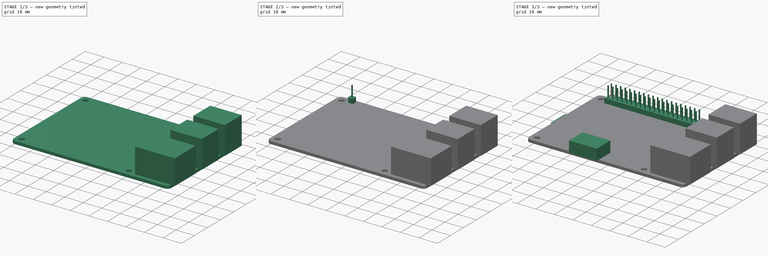
[diagram: build sequence overview — one tinted view per stage of 3, left to right]
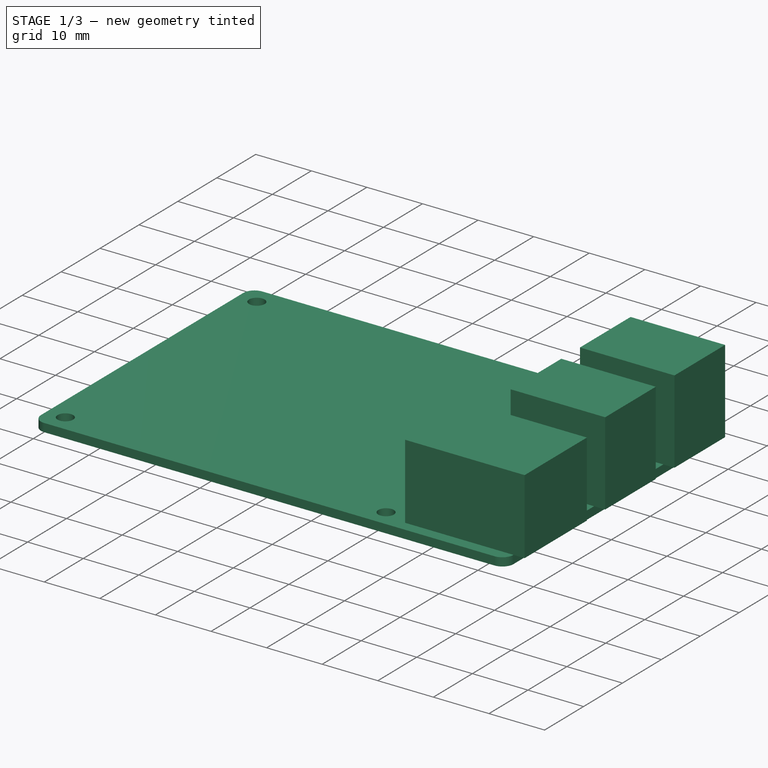
[diagram: stage 1 of 3 — iso view after this stage's code; geometry added in this stage tinted green]
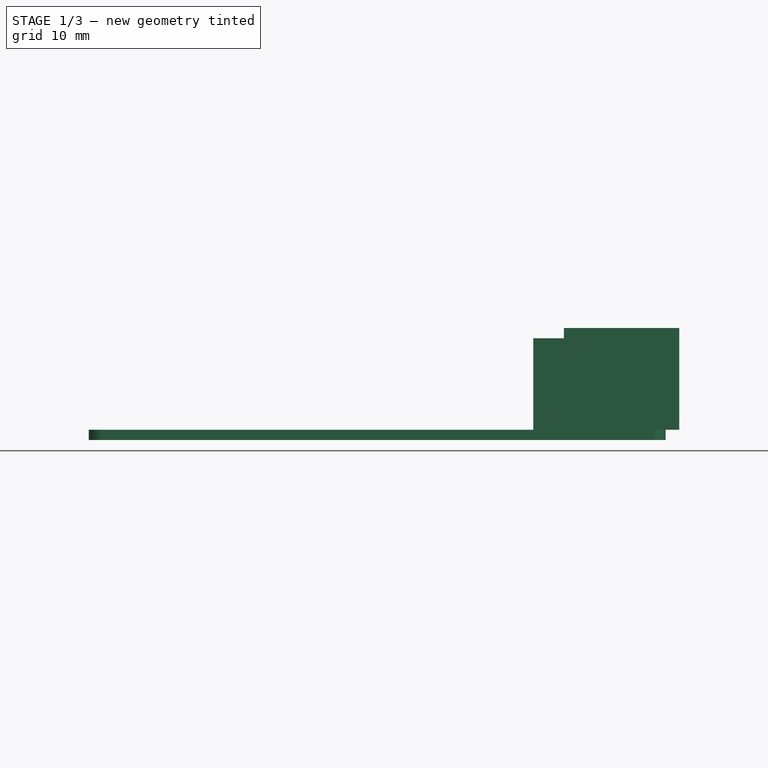
[diagram: stage 1 of 3 — front view after this stage's code; geometry added in this stage tinted green]
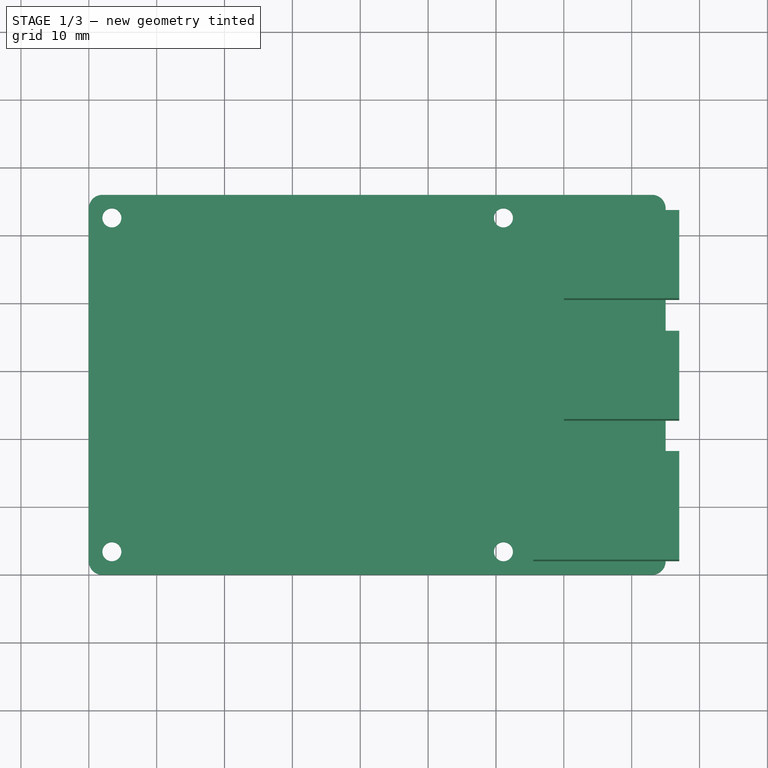
[diagram: stage 1 of 3 — top view after this stage's code; geometry added in this stage tinted green]
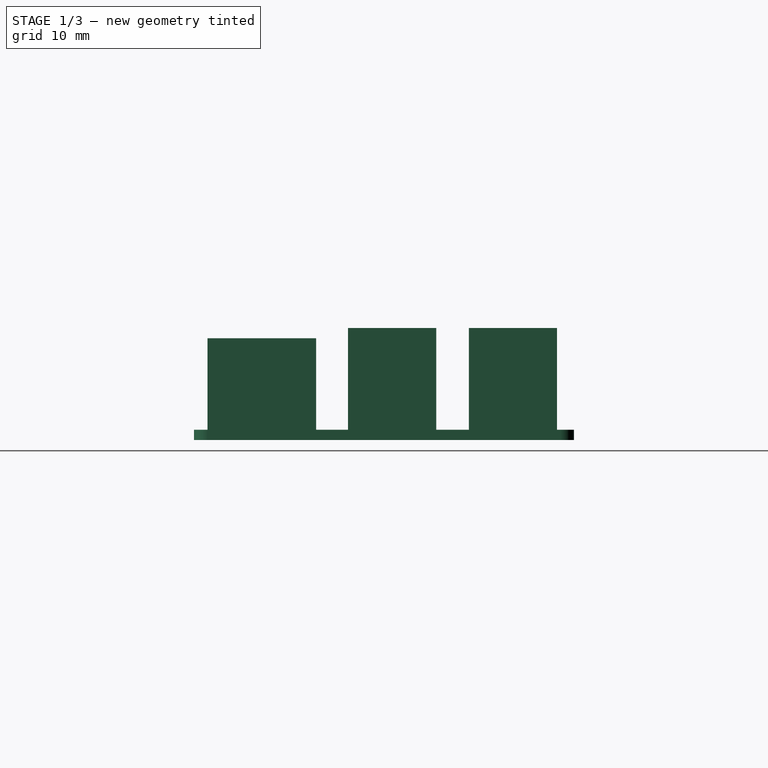
[diagram: stage 1 of 3 — right view after this stage's code; geometry added in this stage tinted green]
FCSTD DOCUMENT  (FreeCAD 1.0R39285 (Git))
Label: RaspberryPI-3B
License: All rights reserved
LicenseURL: https://en.wikipedia.org/wiki/All_rights_reserved
objects: Sketcher::SketchObject×7, PartDesign::Pad×7, PartDesign::LinearPattern×2, PartDesign::MultiTransform×1, PartDesign::Body×1
note: 42 computed .brp shape members not serialized (recipe doc carries the construction recipe); baked Part::Feature solids carry a one-line shape summary decoded from their .brp

FEATURE [Sketcher::SketchObject] Sketch
  ArcFitTolerance = 1e-06
  AttachmentSupport = -> [XY_Plane]
  FullyConstrained = true
  MakeInternals = false
  MapMode = 5
  sketch-geometry (20):
    g0: LineSegment StartX=0 StartY=54 StartZ=0 EndX=0 EndY=2 EndZ=0
    g1: LineSegment StartX=2 StartY=0 StartZ=0 EndX=83 EndY=0 EndZ=0
    g2: LineSegment StartX=85 StartY=2 StartZ=0 EndX=85 EndY=54 EndZ=0
    g3: LineSegment StartX=83 StartY=56 StartZ=0 EndX=2 EndY=56 EndZ=0
    g4: ArcOfCircle CenterX=2 CenterY=2 CenterZ=0 NormalX=0 NormalY=0 NormalZ=1 AngleXU=0 Radius=2 StartAngle=3.14159 EndAngle=4.71239
    g5: GeomPoint [constr] X=0 Y=0 Z=0
    g6: ArcOfCircle CenterX=2 CenterY=54 CenterZ=0 NormalX=0 NormalY=0 NormalZ=1 AngleXU=0 Radius=2 StartAngle=1.5708 EndAngle=3.14159
    g7: GeomPoint [constr] X=0 Y=56 Z=0
    g8: ArcOfCircle CenterX=83 CenterY=54 CenterZ=0 NormalX=0 NormalY=0 NormalZ=1 AngleXU=0 Radius=2 StartAngle=0 EndAngle=1.5708
    g9: GeomPoint [constr] X=85 Y=56 Z=0
    g10: ArcOfCircle CenterX=83 CenterY=2 CenterZ=0 NormalX=0 NormalY=0 NormalZ=1 AngleXU=0 Radius=2 StartAngle=4.71239 EndAngle=6.28319
    g11: GeomPoint [constr] X=85 Y=0 Z=0
    g12: Circle CenterX=3.4 CenterY=3.4 CenterZ=0 NormalX=0 NormalY=0 NormalZ=1 AngleXU=0 Radius=1.4
    g13: Circle CenterX=3.4 CenterY=52.6 CenterZ=0 NormalX=0 NormalY=0 NormalZ=1 AngleXU=0 Radius=1.4
    g14: Circle CenterX=61.1 CenterY=52.6 CenterZ=0 NormalX=0 NormalY=0 NormalZ=1 AngleXU=0 Radius=1.4
    g15: Circle CenterX=61.1 CenterY=3.4 CenterZ=0 NormalX=0 NormalY=0 NormalZ=1 AngleXU=0 Radius=1.4
    g16: LineSegment [constr] StartX=61.1 StartY=54 StartZ=0 EndX=61.1 EndY=56 EndZ=0
    g17: LineSegment [constr] StartX=2 StartY=3.4 StartZ=0 EndX=0 EndY=3.4 EndZ=0
    g18: LineSegment [constr] StartX=3.4 StartY=2 StartZ=0 EndX=3.4 EndY=0 EndZ=0
    g19: LineSegment [constr] StartX=62.5 StartY=52.6 StartZ=0 EndX=85 EndY=52.6 EndZ=0
  constraints (55):
    c: Vertical(g0)
    c: Vertical(g2)
    c: Horizontal(g1)
    c: Horizontal(g3)
    c: Distance(g7,g9) = 85
    c: Distance(g5,g7) = 56
    c: PointOnObject(g5,g0)
    c: PointOnObject(g5,g1)
    c: Tangent(g0,g4) = -1.5708
    c: Tangent(g1,g4) = -1.5708
    c: PointOnObject(g7,g0)
    c: PointOnObject(g7,g3)
    c: Tangent(g0,g6) = -1.5708
    c: Tangent(g3,g6) = -1.5708
    c: PointOnObject(g9,g2)
    c: PointOnObject(g9,g3)
    c: Tangent(g2,g8) = -1.5708
    c: Tangent(g3,g8) = -1.5708
    c: PointOnObject(g11,g1)
    c: PointOnObject(g11,g2)
    c: Tangent(g1,g10) = -1.5708
    c: Tangent(g2,g10) = -1.5708
    c: Equal(g4,g6)
    c: Equal(g6,g8)
    c: Equal(g8,g10)
    c: Coincident(g5,g-1)
    c: Diameter(g4) = 4
    c: Diameter(g12) = 2.8
    c: Equal(g13,g12)
    c: Equal(g12,g15)
    c: Equal(g15,g14)
    c: Horizontal(g13,g14)
    c: Horizontal(g15,g12)
    c: Vertical(g12,g13)
    c: Vertical(g14,g15)
    c: PointOnObject(g16,g14)
    c: PointOnObject(g16,g3)
    c: Vertical(g16)
    c: Vertical(g16,g14)
    c: PointOnObject(g17,g12)
    c: PointOnObject(g17,g0)
    c: Horizontal(g17)
    c: PointOnObject(g18,g12)
    c: PointOnObject(g18,g1)
    c: Vertical(g18)
    c: Vertical(g18,g12)
    c: Horizontal(g12,g17)
    c: Equal(g16,g18)
    c: Equal(g18,g17)
    c: DistanceY(g18,g18) = 2
    c: PointOnObject(g19,g14)
    c: PointOnObject(g19,g2)
    c: Horizontal(g19)
    c: DistanceX(g19,g19) = 22.5
    c: Horizontal(g19,g14)
FEATURE [PartDesign::Pad] Pad
  Direction = (0,0,1)
  Length = 1.5
  Length2 = 10
  Profile = -> Sketch
  ReferenceAxis = -> Sketch [N_Axis]
  Refine = true
  Reversed = true
  Suppressed = false
  Type = 0
FEATURE [Sketcher::SketchObject] Sketch001
  ArcFitTolerance = 1e-06
  AttachmentSupport = -> [Pad]
  ExternalGeometry = -> [Pad]
  FullyConstrained = true
  MakeInternals = false
  MapMode = 5
  sketch-geometry (8):
    g0: LineSegment StartX=70 StartY=53.5 StartZ=0 EndX=70 EndY=40.5 EndZ=0
    g1: LineSegment StartX=70 StartY=40.5 StartZ=0 EndX=87 EndY=40.5 EndZ=0
    g2: LineSegment StartX=87 StartY=40.5 StartZ=0 EndX=87 EndY=53.5 EndZ=0
    g3: LineSegment StartX=87 StartY=53.5 StartZ=0 EndX=70 EndY=53.5 EndZ=0
    g4: LineSegment StartX=70 StartY=35.7 StartZ=0 EndX=70 EndY=22.7 EndZ=0
    g5: LineSegment StartX=70 StartY=22.7 StartZ=0 EndX=87 EndY=22.7 EndZ=0
    g6: LineSegment StartX=87 StartY=22.7 StartZ=0 EndX=87 EndY=35.7 EndZ=0
    g7: LineSegment StartX=87 StartY=35.7 StartZ=0 EndX=70 EndY=35.7 EndZ=0
  constraints (24):
    c: Coincident(g0,g1)
    c: Coincident(g1,g2)
    c: Coincident(g2,g3)
    c: Coincident(g3,g0)
    c: Vertical(g0)
    c: Vertical(g2)
    c: Horizontal(g1)
    c: Horizontal(g3)
    c: Coincident(g4,g5)
    c: Coincident(g5,g6)
    c: Coincident(g6,g7)
    c: Coincident(g7,g4)
    c: Vertical(g4)
    c: Vertical(g6)
    c: Horizontal(g5)
    c: Horizontal(g7)
    c: Vertical(g0,g4)
    c: Equal(g7,g3)
    c: Equal(g6,g2)
    c: DistanceX(g3,g3) = 17
    c: DistanceY(g2,g2) = 13
    c: DistanceY(g0,g-4) = 2.5
    c: DistanceX(g-3,g2) = 2
    c: DistanceY(g6,g1) = 4.8
FEATURE [PartDesign::Pad] Pad001
  BaseFeature = -> Pad
  Direction = (0,0,1)
  Length = 15
  Length2 = 10
  Profile = -> Sketch001
  ReferenceAxis = -> Sketch001 [N_Axis]
  Refine = true
  Suppressed = false
  Type = 0
FEATURE [Sketcher::SketchObject] Sketch002
  ArcFitTolerance = 1e-06
  AttachmentSupport = -> [Pad001]
  ExternalGeometry = -> [Pad001]
  FullyConstrained = true
  MakeInternals = false
  MapMode = 5
  sketch-geometry (4):
    g0: LineSegment StartX=65.5 StartY=18 StartZ=0 EndX=65.5 EndY=2 EndZ=0
    g1: LineSegment StartX=65.5 StartY=2 StartZ=0 EndX=87 EndY=2 EndZ=0
    g2: LineSegment StartX=87 StartY=2 StartZ=0 EndX=87 EndY=18 EndZ=0
    g3: LineSegment StartX=87 StartY=18 StartZ=0 EndX=65.5 EndY=18 EndZ=0
  constraints (12):
    c: Coincident(g0,g1)
    c: Coincident(g1,g2)
    c: Coincident(g2,g3)
    c: Coincident(g3,g0)
    c: Vertical(g0)
    c: Vertical(g2)
    c: Horizontal(g1)
    c: Horizontal(g3)
    c: DistanceX(g3,g3) = 21.5
    c: DistanceY(g0,g0) = 16
    c: DistanceX(g-3,g1) = 2
    c: DistanceY(g-1,g1) = 2
FEATURE [PartDesign::Pad] Pad002
  BaseFeature = -> Pad001
  Direction = (0,0,1)
  Length = 13.5
  Length2 = 10
  Profile = -> Sketch002
  ReferenceAxis = -> Sketch002 [N_Axis]
  Refine = true
  Suppressed = false
  Type = 0
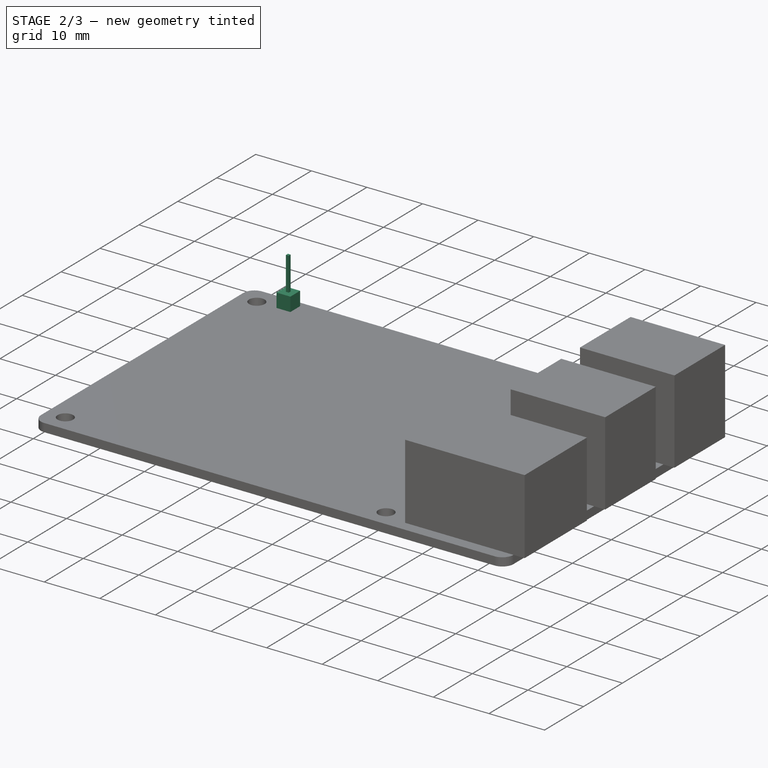
[diagram: stage 2 of 3 — iso view after this stage's code; geometry added in this stage tinted green]
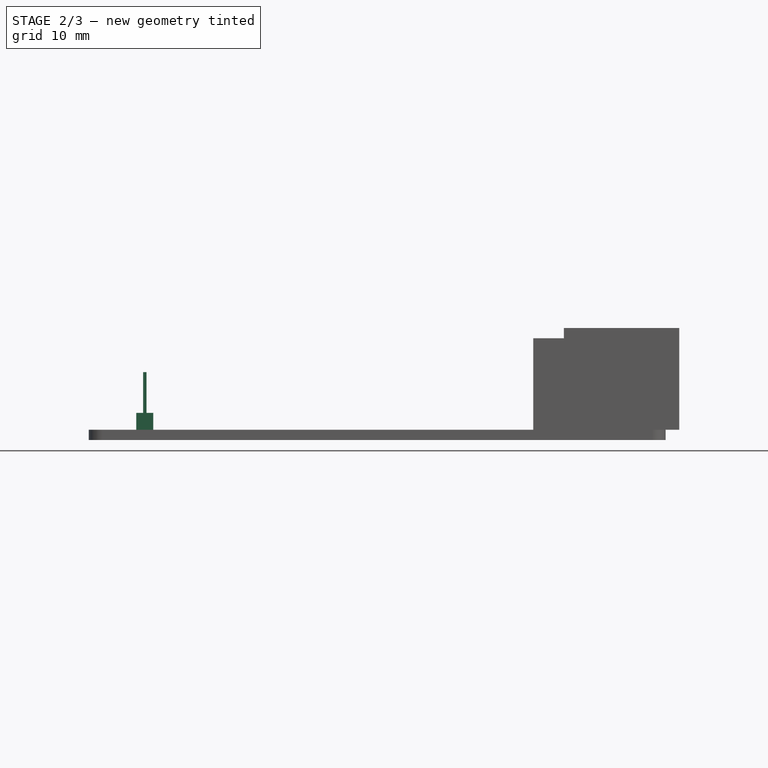
[diagram: stage 2 of 3 — front view after this stage's code; geometry added in this stage tinted green]
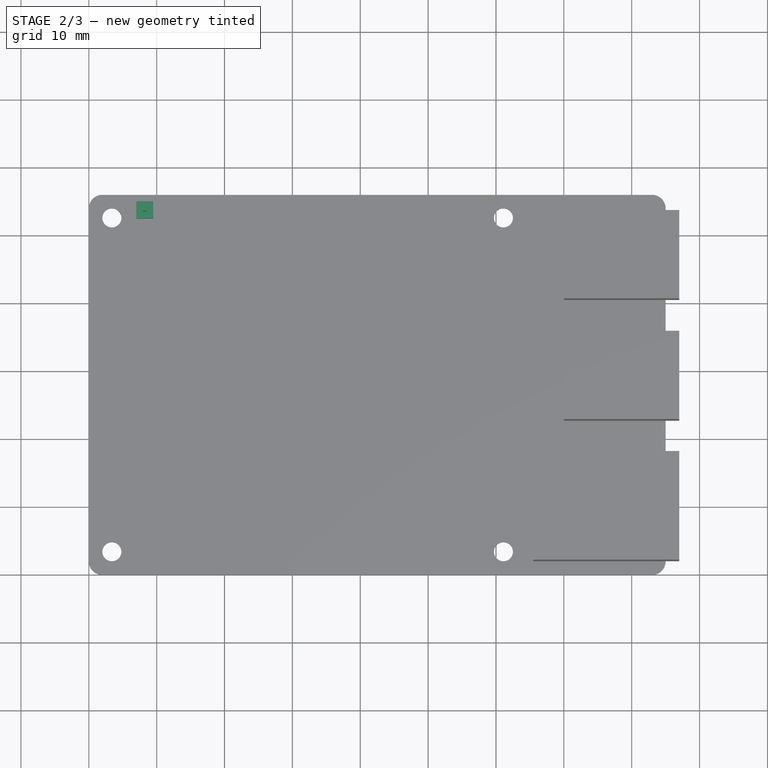
[diagram: stage 2 of 3 — top view after this stage's code; geometry added in this stage tinted green]
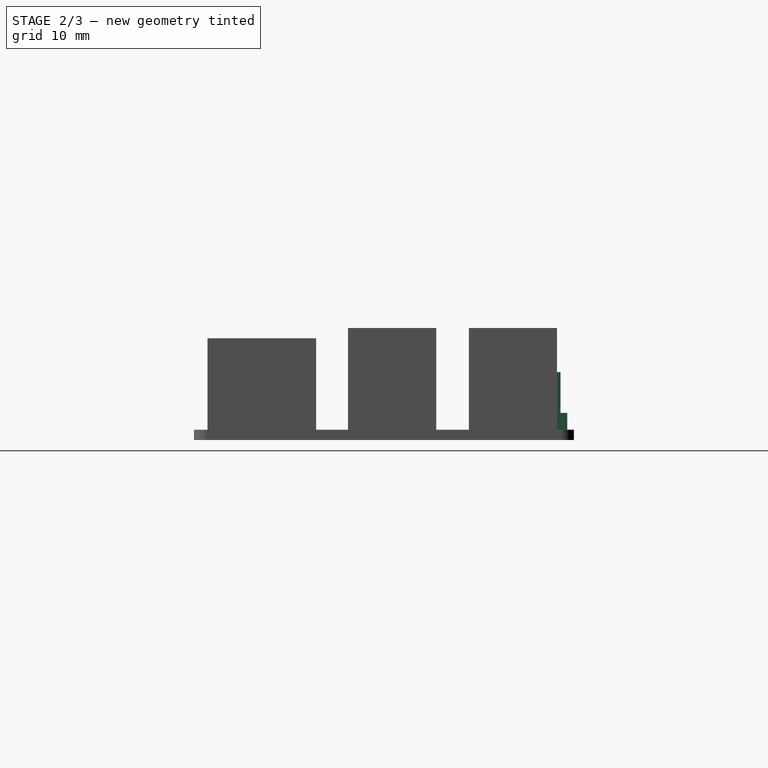
[diagram: stage 2 of 3 — right view after this stage's code; geometry added in this stage tinted green]
FEATURE [Sketcher::SketchObject] Sketch003
  ArcFitTolerance = 1e-06
  AttachmentSupport = -> [Pad002]
  ExternalGeometry = -> [Pad002]
  FullyConstrained = true
  MakeInternals = false
  MapMode = 5
  sketch-geometry (4):
    g0: LineSegment StartX=7 StartY=55 StartZ=0 EndX=7 EndY=52.5 EndZ=0
    g1: LineSegment StartX=7 StartY=52.5 StartZ=0 EndX=9.5 EndY=52.5 EndZ=0
    g2: LineSegment StartX=9.5 StartY=52.5 StartZ=0 EndX=9.5 EndY=55 EndZ=0
    g3: LineSegment StartX=9.5 StartY=55 StartZ=0 EndX=7 EndY=55 EndZ=0
  constraints (12):
    c: Coincident(g0,g1)
    c: Coincident(g1,g2)
    c: Coincident(g2,g3)
    c: Coincident(g3,g0)
    c: Vertical(g0)
    c: Vertical(g2)
    c: Horizontal(g1)
    c: Horizontal(g3)
    c: DistanceX(g3,g3) = 2.5
    c: Equal(g2,g3)
    c: DistanceX(g-1,g0) = 7
    c: DistanceY(g0,g-3) = 1
FEATURE [PartDesign::Pad] Pad003
  BaseFeature = -> Pad002
  Direction = (0,0,1)
  Length = 2.5
  Length2 = 10
  Profile = -> Sketch003
  ReferenceAxis = -> Sketch003 [N_Axis]
  Refine = true
  Suppressed = false
  Type = 0
FEATURE [Sketcher::SketchObject] Sketch004
  ArcFitTolerance = 1e-06
  AttachmentSupport = -> [Pad003]
  ExternalGeometry = -> [Pad003]
  FullyConstrained = true
  MakeInternals = false
  MapMode = 5
  Placement = pos=(0,0,2.5) rot=(0,0,1;0rad)
  sketch-geometry (5):
    g0: LineSegment StartX=8 StartY=54 StartZ=0 EndX=8 EndY=53.5 EndZ=0
    g1: LineSegment StartX=8 StartY=53.5 StartZ=0 EndX=8.5 EndY=53.5 EndZ=0
    g2: LineSegment StartX=8.5 StartY=53.5 StartZ=0 EndX=8.5 EndY=54 EndZ=0
    g3: LineSegment StartX=8.5 StartY=54 StartZ=0 EndX=8 EndY=54 EndZ=0
    g4: GeomPoint [constr] X=8.25 Y=53.75 Z=0
  constraints (12):
    c: Coincident(g0,g1)
    c: Coincident(g1,g2)
    c: Coincident(g2,g3)
    c: Coincident(g3,g0)
    c: Vertical(g0)
    c: Vertical(g2)
    c: Horizontal(g1)
    c: Horizontal(g3)
    c: Symmetric(g0,g1,g4)
    c: Symmetric(g-3,g-4,g4)
    c: Equal(g3,g2)
    c: DistanceY(g2,g2) = 0.5
FEATURE [PartDesign::Pad] Pad004
  BaseFeature = -> Pad003
  Direction = (0,0,1)
  Length = 6
  Length2 = 10
  Profile = -> Sketch004
  ReferenceAxis = -> Sketch004 [N_Axis]
  Refine = true
  Suppressed = false
  Type = 0
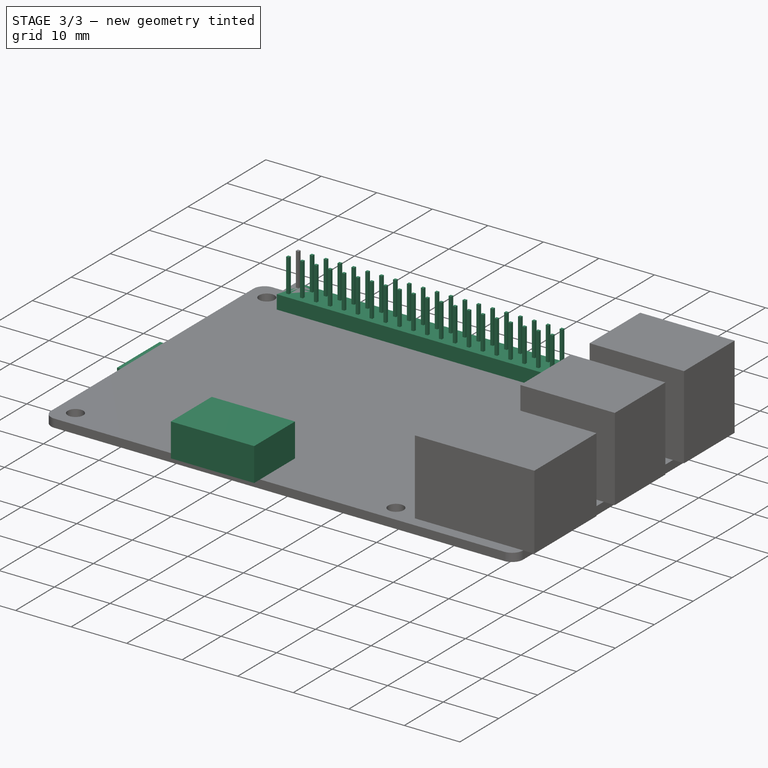
[diagram: stage 3 of 3 — iso view after this stage's code; geometry added in this stage tinted green]
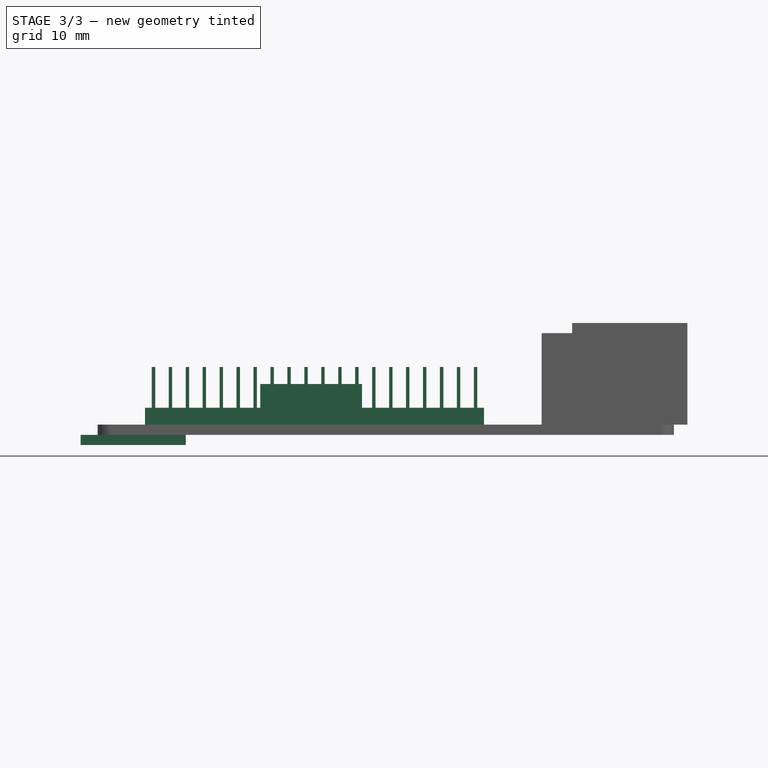
[diagram: stage 3 of 3 — front view after this stage's code; geometry added in this stage tinted green]
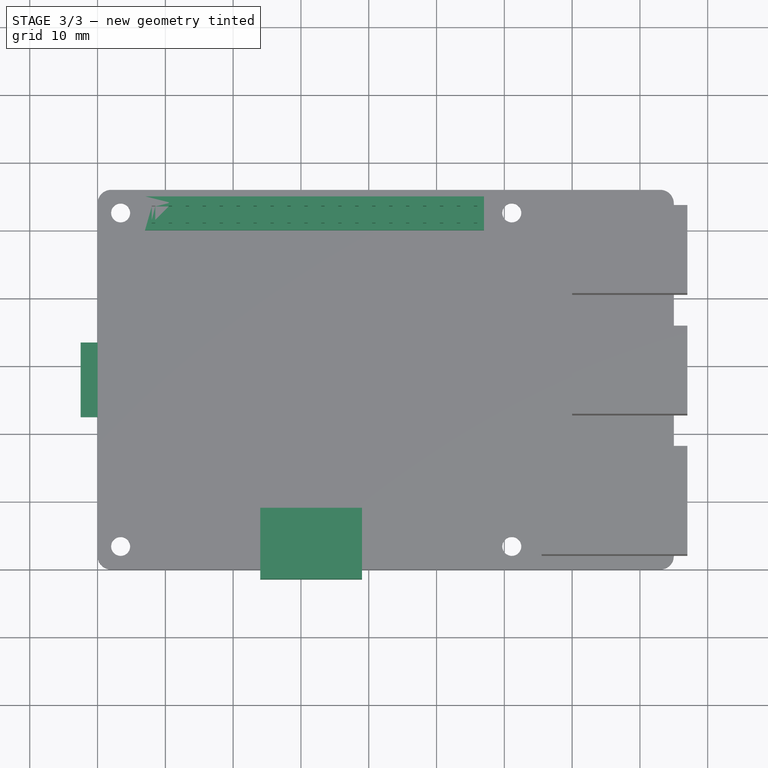
[diagram: stage 3 of 3 — top view after this stage's code; geometry added in this stage tinted green]
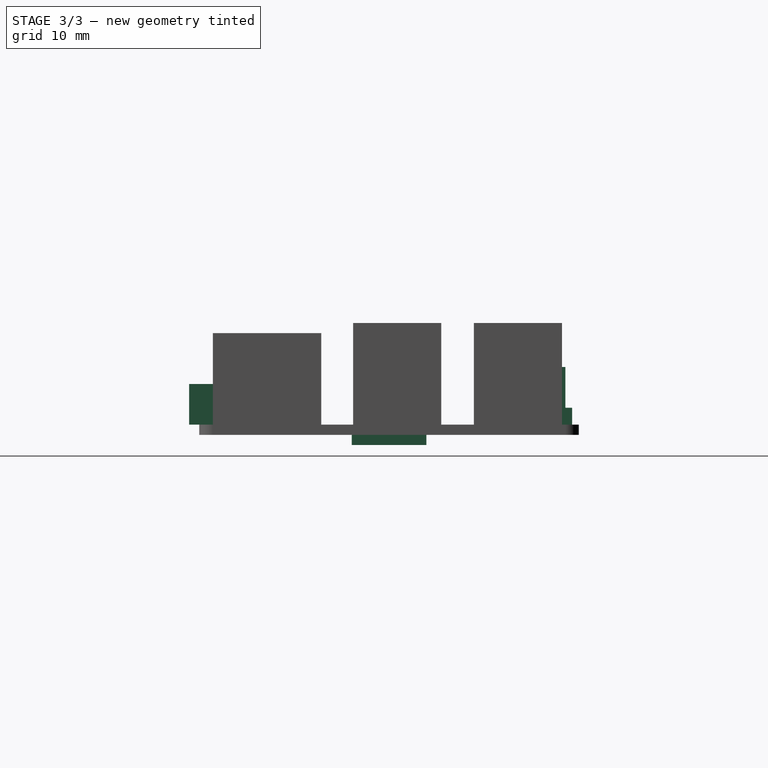
[diagram: stage 3 of 3 — right view after this stage's code; geometry added in this stage tinted green]
FEATURE [PartDesign::LinearPattern] LinearPattern
  Direction = -> Sketch003 [H_Axis]
  Length = 47.5
  Mode = 0
  Occurrences = 20
  Offset = 2.5
  Refine = true
  Suppressed = false
  TransformMode = 0
FEATURE [PartDesign::LinearPattern] LinearPattern001
  Direction = -> Sketch003 [V_Axis]
  Length = 2.5
  Mode = 0
  Occurrences = 2
  Offset = 2.5
  Refine = true
  Reversed = true
  Suppressed = false
  TransformMode = 0
FEATURE [PartDesign::MultiTransform] MultiTransform
  BaseFeature = -> Pad004
  Originals = -> [Pad003,Pad004]
  Refine = true
  Suppressed = false
  TransformMode = 0
  Transformations = -> [LinearPattern,LinearPattern001]
FEATURE [Sketcher::SketchObject] Sketch005
  ArcFitTolerance = 1e-06
  AttachmentSupport = -> [MultiTransform]
  FullyConstrained = true
  MakeInternals = false
  MapMode = 5
  Placement = pos=(0,0,-1.5) rot=(1,0,0;3.14159rad)
  sketch-geometry (4):
    g0: LineSegment StartX=-2.5 StartY=-22.5 StartZ=0 EndX=-2.5 EndY=-33.5 EndZ=0
    g1: LineSegment StartX=-2.5 StartY=-33.5 StartZ=0 EndX=13 EndY=-33.5 EndZ=0
    g2: LineSegment StartX=13 StartY=-33.5 StartZ=0 EndX=13 EndY=-22.5 EndZ=0
    g3: LineSegment StartX=13 StartY=-22.5 StartZ=0 EndX=-2.5 EndY=-22.5 EndZ=0
  constraints (12):
    c: Coincident(g0,g1)
    c: Coincident(g1,g2)
    c: Coincident(g2,g3)
    c: Coincident(g3,g0)
    c: Vertical(g0)
    c: Vertical(g2)
    c: Horizontal(g1)
    c: Horizontal(g3)
    c: DistanceX(g3,g3) = 15.5
    c: DistanceY(g2,g2) = 11
    c: DistanceY(g0,g-1) = 22.5
    c: DistanceX(g0,g-1) = 2.5
FEATURE [PartDesign::Pad] Pad005
  BaseFeature = -> MultiTransform
  Direction = (0,0,-1)
  Length = 1.5
  Length2 = 10
  Profile = -> Sketch005
  ReferenceAxis = -> Sketch005 [N_Axis]
  Refine = true
  Suppressed = false
  Type = 0
FEATURE [Sketcher::SketchObject] Sketch006
  ArcFitTolerance = 1e-06
  AttachmentSupport = -> [Pad005]
  FullyConstrained = true
  MakeInternals = false
  MapMode = 5
  sketch-geometry (4):
    g0: LineSegment StartX=24 StartY=9 StartZ=0 EndX=24 EndY=-1.5 EndZ=0
    g1: LineSegment StartX=24 StartY=-1.5 StartZ=0 EndX=39 EndY=-1.5 EndZ=0
    g2: LineSegment StartX=39 StartY=-1.5 StartZ=0 EndX=39 EndY=9 EndZ=0
    g3: LineSegment StartX=39 StartY=9 StartZ=0 EndX=24 EndY=9 EndZ=0
  constraints (12):
    c: Coincident(g0,g1)
    c: Coincident(g1,g2)
    c: Coincident(g2,g3)
    c: Coincident(g3,g0)
    c: Vertical(g0)
    c: Vertical(g2)
    c: Horizontal(g1)
    c: Horizontal(g3)
    c: Distance(g0,g2) = 15
    c: Distance(g1,g3) = 10.5
    c: DistanceY(g0,g-1) = 1.5
    c: DistanceX(g-1,g0) = 24
FEATURE [PartDesign::Pad] Pad006
  BaseFeature = -> Pad005
  Direction = (0,0,1)
  Length = 6
  Length2 = 10
  Profile = -> Sketch006
  ReferenceAxis = -> Sketch006 [N_Axis]
  Refine = true
  Suppressed = false
  Type = 0
FEATURE [PartDesign::Body] Body  label="Körper"
  AllowCompound = false
  Group = -> [Sketch,Pad,Sketch001,Pad001,Sketch002,Pad002,Sketch003,Pad003,Sketch004,Pad004,MultiTransform,LinearPattern,LinearPattern001,Sketch005,Pad005,Sketch006,Pad006]
  Origin = -> Origin
  Tip = -> Pad006
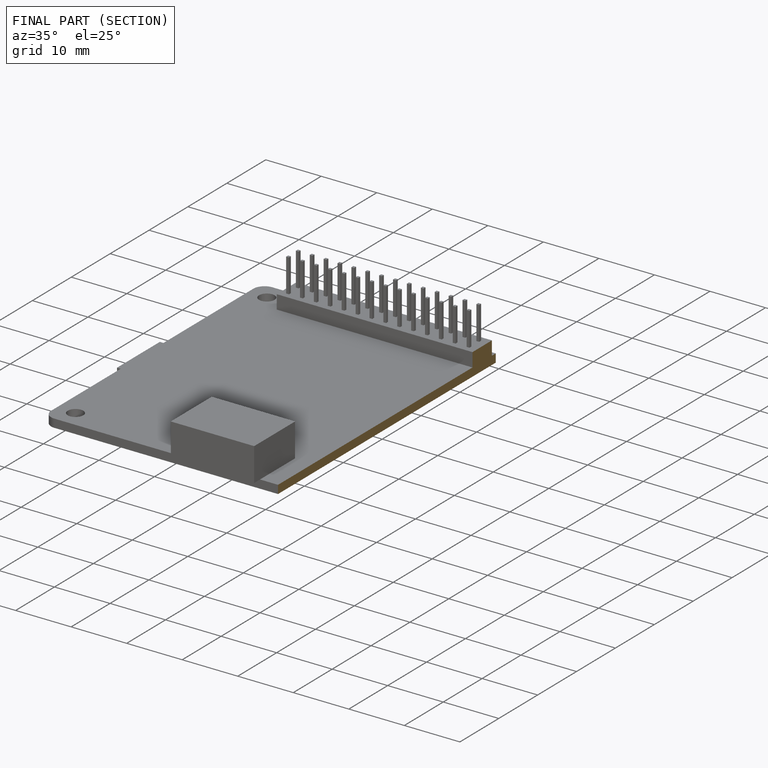
[diagram: finished part — half-section view (interior)]
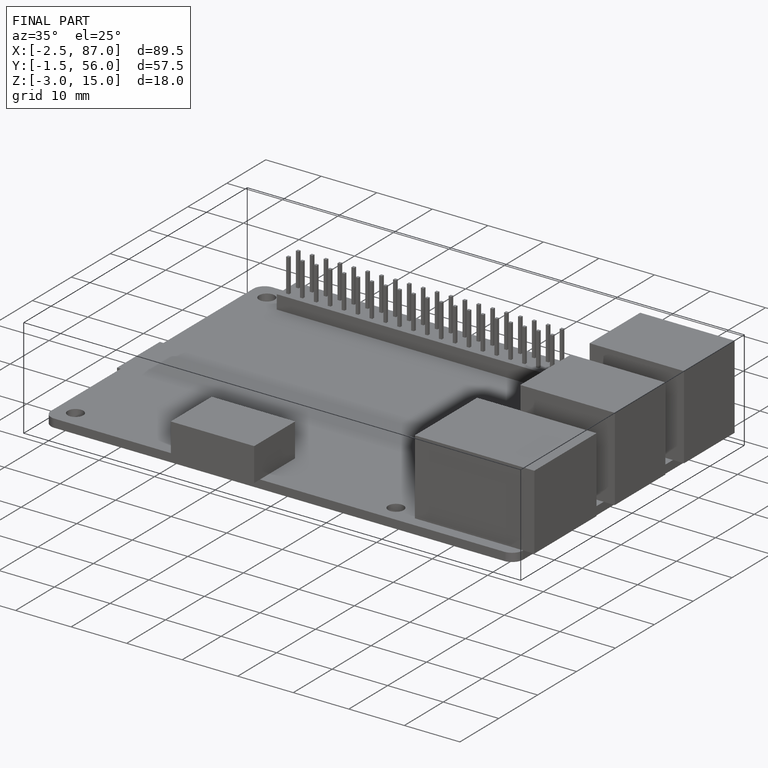
[diagram: finished part — iso view with bounding-box wireframe]
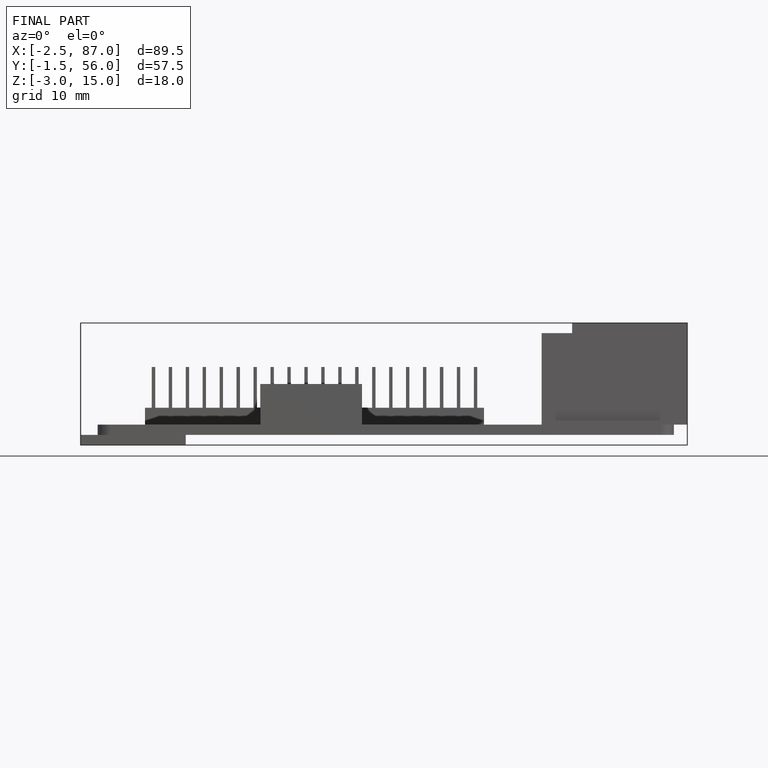
[diagram: finished part — front view with bounding-box wireframe]
